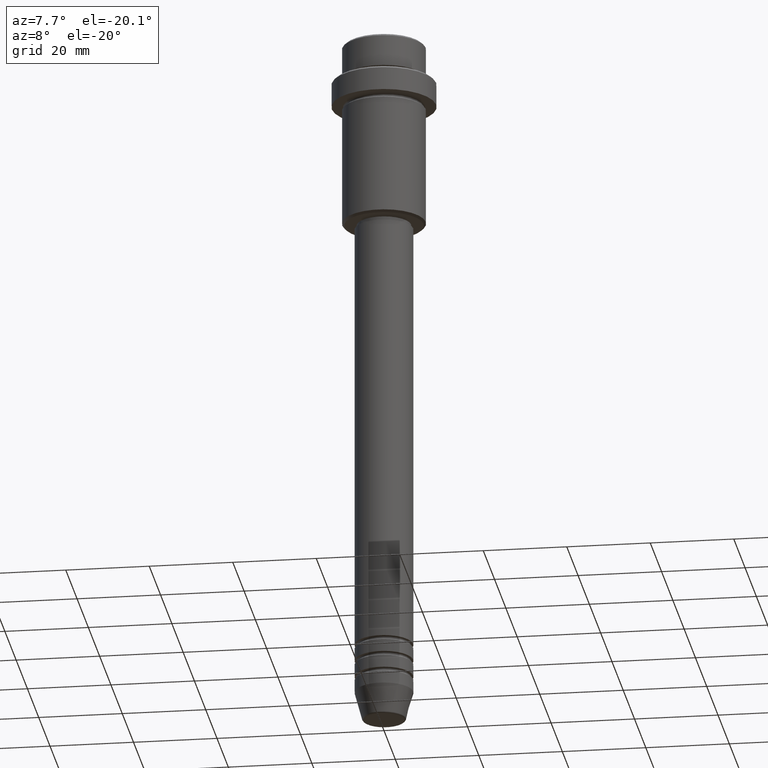
[diagram: clean part render]
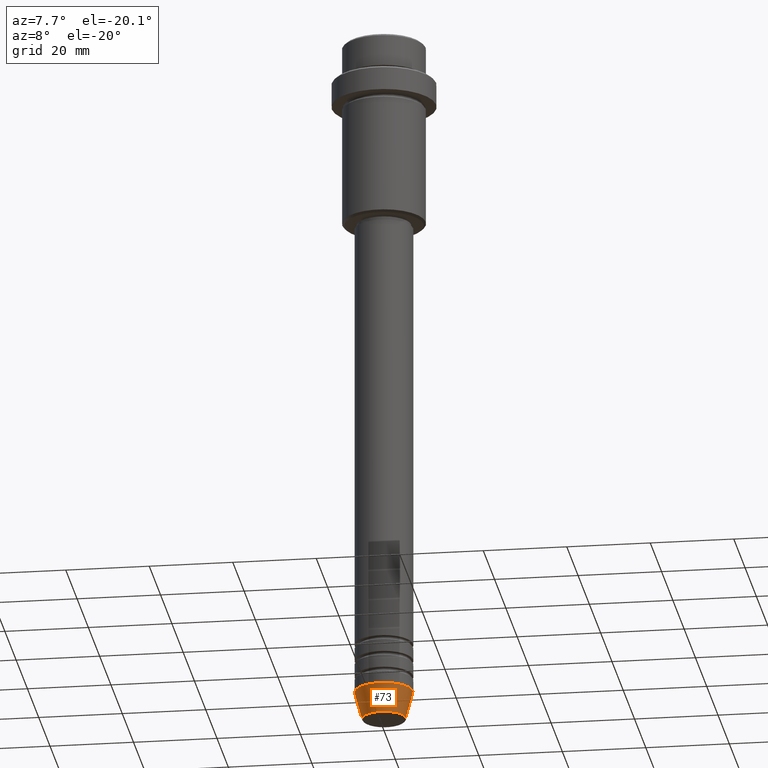
[diagram: same view with one face highlighted and labeled with its STEP entity id]
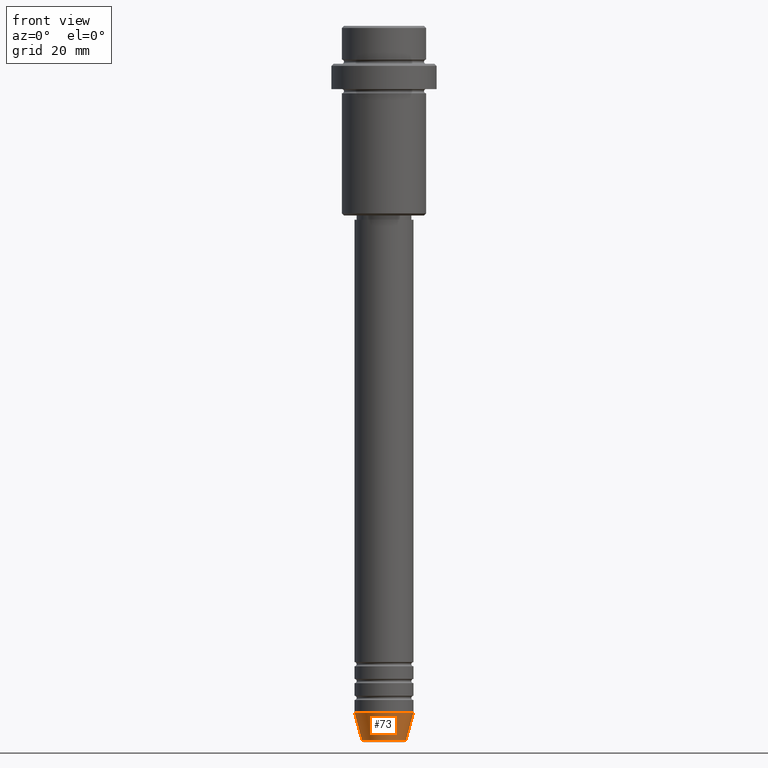
[diagram: same view with one face highlighted and labeled with its STEP entity id]
A machine part, auxiliary view. The second image highlights one B-rep face of the part: STEP entity #73.
A second angle (front view) of the same face is appended — the face is thin or edge-on in the first view.
In plain terms, the highlighted conical surface has half-angle 15 deg.
Its self-contained STEP definition (entity closure, byte-faithful):
#9 = CARTESIAN_POINT ( 'NONE',  ( 0.000000000000000000, 0.000000000000000000, -169.6294095225512422 ) ) ;
#15 = EDGE_LOOP ( 'NONE', ( #771, #285, #1033, #416 ) ) ;
#23 = VERTEX_POINT ( 'NONE', #1345 ) ;
#26 = CARTESIAN_POINT ( 'NONE',  ( 0.000000000000000000, 0.000000000000000000, -163.0000000000000000 ) ) ;
#27 = CARTESIAN_POINT ( 'NONE',  ( -5.223655072137196598, 7.484830028987062146E-16, -169.6294095225512422 ) ) ;
#73 = ADVANCED_FACE ( 'NONE', ( #1118 ), #347, .T. ) ;
#121 = CARTESIAN_POINT ( 'NONE',  ( -7.000000000000000000, 8.572527594031473190E-16, -163.0000000000000000 ) ) ;
#207 = LINE ( 'NONE', #388, #1329 ) ;
#218 = DIRECTION ( 'NONE',  ( -0.000000000000000000, -0.000000000000000000, 1.000000000000000000 ) ) ;
#234 = DIRECTION ( 'NONE',  ( -0.2588190451025213501, 3.169619151431772337E-17, 0.9659258262890680902 ) ) ;
#285 = ORIENTED_EDGE ( 'NONE', *, *, #857, .T. ) ;
#338 = EDGE_CURVE ( 'NONE', #1184, #1163, #1175, .T. ) ;
#347 = CONICAL_SURFACE ( 'NONE', #1330, 7.000000000000000000, 0.2617993877991500740 ) ;
#358 = DIRECTION ( 'NONE',  ( 1.000000000000000000, 0.000000000000000000, 0.000000000000000000 ) ) ;
#362 = EDGE_CURVE ( 'NONE', #1350, #1184, #1009, .T. ) ;
#388 = CARTESIAN_POINT ( 'NONE',  ( 7.000000000000000000, 0.000000000000000000, -163.0000000000000000 ) ) ;
#416 = ORIENTED_EDGE ( 'NONE', *, *, #338, .F. ) ;
#451 = CARTESIAN_POINT ( 'NONE',  ( 0.000000000000000000, 0.000000000000000000, -163.0000000000000000 ) ) ;
#495 = CIRCLE ( 'NONE', #1290, 5.223655072137196598 ) ;
#644 = CARTESIAN_POINT ( 'NONE',  ( 7.000000000000000000, 0.000000000000000000, -163.0000000000000000 ) ) ;
#731 = DIRECTION ( 'NONE',  ( 0.2588190451025213501, 0.000000000000000000, 0.9659258262890680902 ) ) ;
#771 = ORIENTED_EDGE ( 'NONE', *, *, #362, .F. ) ;
#857 = EDGE_CURVE ( 'NONE', #1350, #23, #495, .T. ) ;
#962 = CARTESIAN_POINT ( 'NONE',  ( -7.000000000000000000, 8.572527594031473190E-16, -163.0000000000000000 ) ) ;
#1009 = LINE ( 'NONE', #962, #1307 ) ;
#1031 = DIRECTION ( 'NONE',  ( -0.000000000000000000, -0.000000000000000000, 1.000000000000000000 ) ) ;
#1033 = ORIENTED_EDGE ( 'NONE', *, *, #1066, .T. ) ;
#1066 = EDGE_CURVE ( 'NONE', #23, #1163, #207, .T. ) ;
#1095 = DIRECTION ( 'NONE',  ( 1.000000000000000000, 0.000000000000000000, 0.000000000000000000 ) ) ;
#1118 = FACE_OUTER_BOUND ( 'NONE', #15, .T. ) ;
#1120 = DIRECTION ( 'NONE',  ( 1.000000000000000000, 0.000000000000000000, 0.000000000000000000 ) ) ;
#1163 = VERTEX_POINT ( 'NONE', #644 ) ;
#1175 = CIRCLE ( 'NONE', #1287, 7.000000000000000000 ) ;
#1184 = VERTEX_POINT ( 'NONE', #121 ) ;
#1223 = DIRECTION ( 'NONE',  ( -0.000000000000000000, -0.000000000000000000, 1.000000000000000000 ) ) ;
#1287 = AXIS2_PLACEMENT_3D ( 'NONE', #451, #1223, #1120 ) ;
#1290 = AXIS2_PLACEMENT_3D ( 'NONE', #9, #218, #1095 ) ;
#1307 = VECTOR ( 'NONE', #234, 1000.000000000000000 ) ;
#1329 = VECTOR ( 'NONE', #731, 1000.000000000000000 ) ;
#1330 = AXIS2_PLACEMENT_3D ( 'NONE', #26, #1031, #358 ) ;
#1345 = CARTESIAN_POINT ( 'NONE',  ( 5.223655072137196598, 0.000000000000000000, -169.6294095225512422 ) ) ;
#1350 = VERTEX_POINT ( 'NONE', #27 ) ;